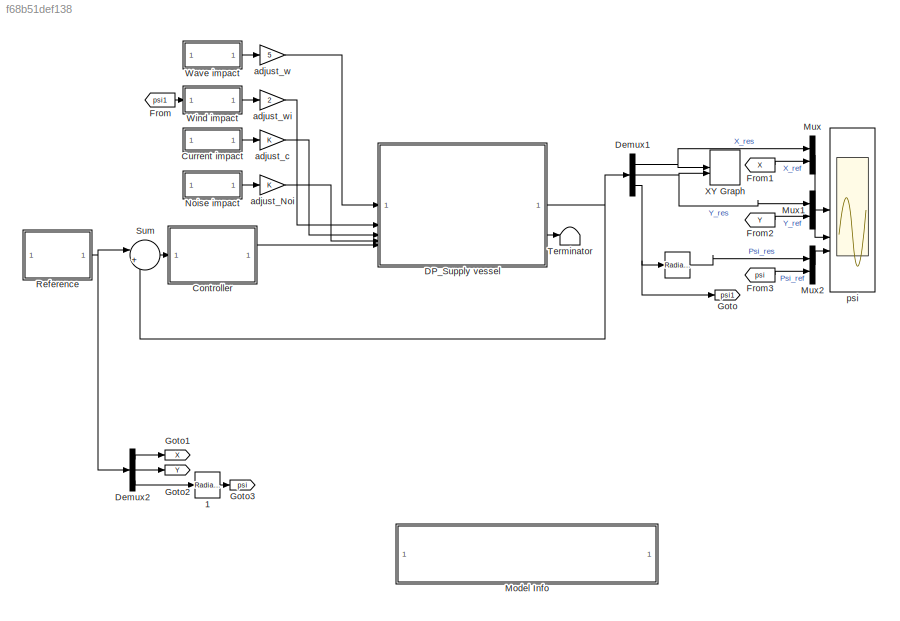
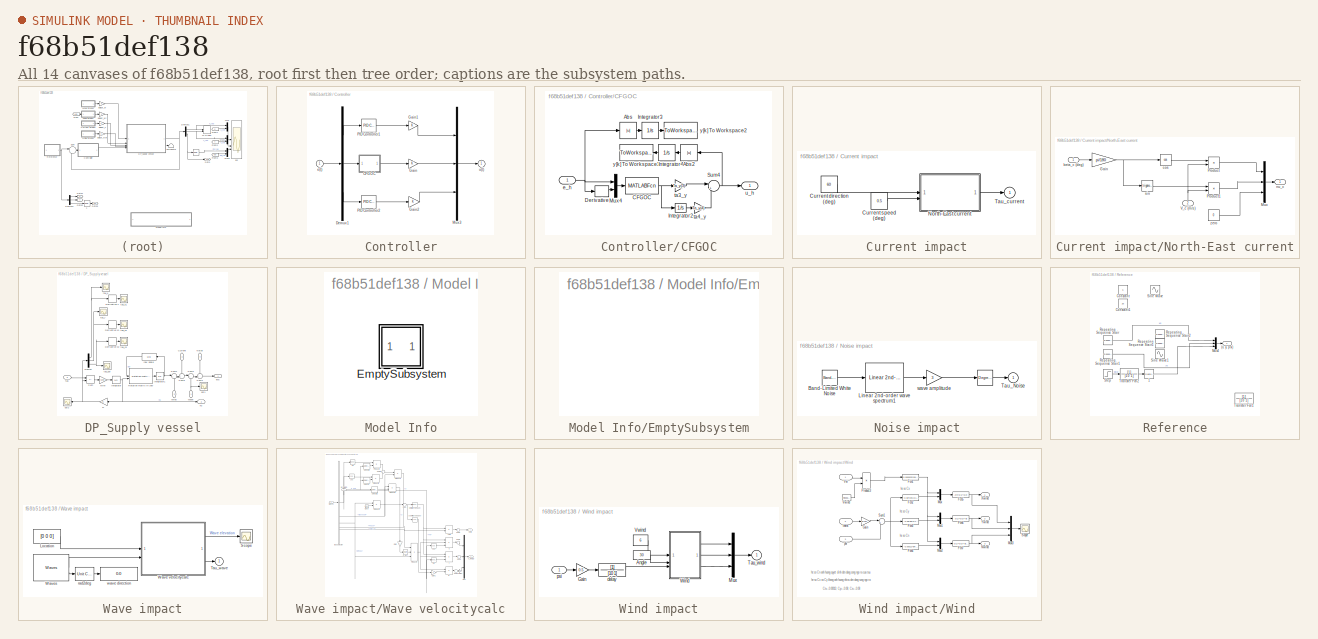
[diagram: thumbnail index - all 14 canvases of the model, root first then tree order]
MODEL slx_f68b51def138
KIND model
CONFIG AbsTol = auto
CONFIG EnableMultiTasking = on
CONFIG FixedStep = auto
CONFIG MaxStep = auto
CONFIG MinStep = auto
CONFIG RelTol = 1e-3
CONFIG SampleTimeConstraint = Unconstrained
CONFIG SolverName = ode45
CONFIG StartTime = 0.0
CONFIG StopTime = 1500
BLOCK [Reference]       REF=simulink_extras/Transformations/Radians
to Degrees
  SourceBlock = simulink_extras/Transformations/Radians\nto Degrees
  SourceType = RadiansToDegrees
BLOCK [Reference]     1  REF=simulink_extras/Transformations/Radians
to Degrees
  SourceBlock = simulink_extras/Transformations/Radians\nto Degrees
  SourceType = RadiansToDegrees
BLOCK [SubSystem] Controller
BLOCK [SubSystem] Controller/CFGOC
BLOCK [Abs] Controller/CFGOC/Abs
  SaturateOnIntegerOverflow = off
BLOCK [Abs] Controller/CFGOC/Abs2
  NameLocation = top
  SaturateOnIntegerOverflow = off
BLOCK [MATLABFcn] Controller/CFGOC/CFGOC
  MATLABFcn = TFC_xy
  OutputDimensions = 1
BLOCK [Derivative] Controller/CFGOC/Derivative
BLOCK [Integrator] Controller/CFGOC/Integrator2
BLOCK [Integrator] Controller/CFGOC/Integrator3
BLOCK [Integrator] Controller/CFGOC/Integrator4
  NameLocation = top
BLOCK [Mux] Controller/CFGOC/Mux4
  DisplayOption = bar
  Inputs = 2
BLOCK [Sum] Controller/CFGOC/Sum4
  InputSameDT = on
  Inputs = |++
  OutDataTypeStr = Inherit: Same as first input
  SaturateOnIntegerOverflow = on
BLOCK [Inport] Controller/CFGOC/e_h
BLOCK [Gain] Controller/CFGOC/ta3_y
  Gain = Ta_y(3)
BLOCK [Gain] Controller/CFGOC/ta4_y
  Gain = Ta_y(4)
  NameLocation = top
BLOCK [Outport] Controller/CFGOC/u_h
BLOCK [ToWorkspace] Controller/CFGOC/y[k] To Workspace2
  MaxDataPoints = inf
  SampleTime = -1
  SaveFormat = Timeseries
  VariableName = Sysy_Out1
BLOCK [ToWorkspace] Controller/CFGOC/y[k] To Workspace3
  MaxDataPoints = inf
  NameLocation = top
  SampleTime = -1
  SaveFormat = Timeseries
  VariableName = Sysy_Out2
BLOCK [Demux] Controller/Demux1
  Outputs = 3
BLOCK [Gain] Controller/Gain
BLOCK [Gain] Controller/Gain1
BLOCK [Gain] Controller/Gain2
BLOCK [Mux] Controller/Mux3
  DisplayOption = bar
  Inputs = 3
BLOCK [Reference] Controller/PID Controller1  REF=slpidlib/PID Controller
  SourceBlock = slpidlib/PID Controller
  SourceType = PID 1dof
BLOCK [Reference] Controller/PID Controller2  REF=slpidlib/PID Controller
  SourceBlock = slpidlib/PID Controller
  SourceType = PID 1dof
BLOCK [Inport] Controller/e(t)
BLOCK [Outport] Controller/u(t)
BLOCK [SubSystem] Current impact
BLOCK [Constant] Current impact/Current direction (deg)
  Value = 60
BLOCK [Constant] Current impact/Current speed (deg)
  Value = 0.5
BLOCK [SubSystem] Current impact/North-East current
  AncestorBlock = marine_gnc/Environment/Current/North-East current
BLOCK [Gain] Current impact/North-East current/Gain
  Gain = pi/180
BLOCK [Mux] Current impact/North-East current/Mux
  DisplayOption = bar
  Inputs = 3
BLOCK [Product] Current impact/North-East current/Product
  RndMeth = Zero
BLOCK [Product] Current impact/North-East current/Product1
  RndMeth = Zero
BLOCK [Inport] Current impact/North-East current/V_c (m//s)
  NameLocation = left
  Port = 2
BLOCK [Inport] Current impact/North-East current/beta_c (deg)
BLOCK [Trigonometry] Current impact/North-East current/cos
  Operator = cos
BLOCK [Outport] Current impact/North-East current/nu_c
BLOCK [Trigonometry] Current impact/North-East current/sin
BLOCK [Constant] Current impact/North-East current/zero
  Value = 0
BLOCK [Outport] Current impact/Tau_current
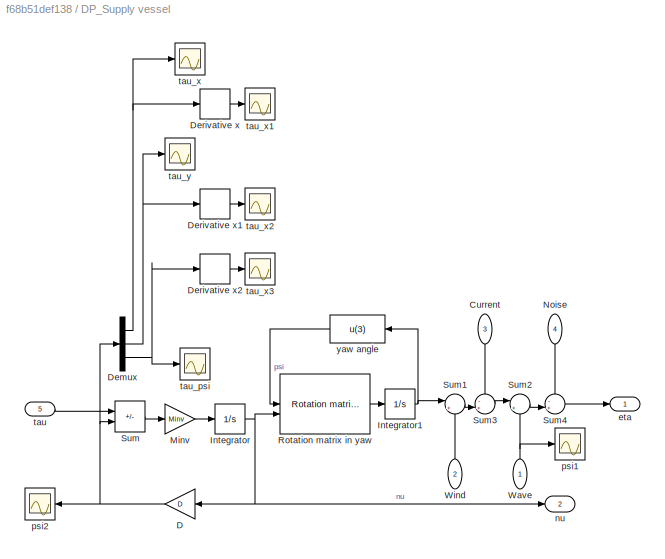
BLOCK [SubSystem] DP_Supply vessel
  AncestorBlock = marine_gnc/Examples/Vessels/Supply vessel
BLOCK [Inport] DP_Supply vessel/Current
  NameLocation = left
  Port = 3
BLOCK [Gain] DP_Supply vessel/D
  Gain = D
  Multiplication = Matrix(K*u)
  OutDataTypeStr = Inherit: Same as input
  ParamDataTypeStr = Inherit: Same as input
  SaturateOnIntegerOverflow = on
BLOCK [Demux] DP_Supply vessel/Demux
  Outputs = 3
BLOCK [Derivative] DP_Supply vessel/Derivative x
BLOCK [Derivative] DP_Supply vessel/Derivative x1
BLOCK [Derivative] DP_Supply vessel/Derivative x2
BLOCK [Integrator] DP_Supply vessel/Integrator
BLOCK [Integrator] DP_Supply vessel/Integrator1
BLOCK [Gain] DP_Supply vessel/Minv
  Gain = Minv
  Multiplication = Matrix(K*u)
  OutDataTypeStr = Inherit: Same as input
  ParamDataTypeStr = Inherit: Same as input
  SaturateOnIntegerOverflow = on
BLOCK [Inport] DP_Supply vessel/Noise
  NameLocation = left
  Port = 4
BLOCK [Reference] DP_Supply vessel/Rotation matrix in yaw   REF=marine_gnc/Models/ Kinematics/Rotation matrix  (lib defined in mdl_10d96c221ba8, mdl_45f1105420c6)
in yaw 
  SourceBlock = marine_gnc/Models/ Kinematics/Rotation matrix\nin yaw
BLOCK [Sum] DP_Supply vessel/Sum
  IconShape = rectangular
  InputSameDT = on
  Inputs = +-
  OutDataTypeStr = Inherit: Same as first input
  SaturateOnIntegerOverflow = on
BLOCK [Sum] DP_Supply vessel/Sum1
  Inputs = |+-
BLOCK [Sum] DP_Supply vessel/Sum2
  Inputs = |+-
BLOCK [Sum] DP_Supply vessel/Sum3
  Inputs = -+|
BLOCK [Sum] DP_Supply vessel/Sum4
  Inputs = -+|
BLOCK [Inport] DP_Supply vessel/Wave
  NameLocation = right
BLOCK [Inport] DP_Supply vessel/Wind
  NameLocation = right
  Port = 2
BLOCK [Outport] DP_Supply vessel/eta
  InitialOutput = 0
BLOCK [Outport] DP_Supply vessel/nu
  InitialOutput = 0
  Port = 2
BLOCK [Scope] DP_Supply vessel/psi1
  Floating = off
  NumInputPorts = 1
  ScopeSpecificationString = Simulink.scopes.TimeScopeBlockCfg('CurrentConfiguration', extmgr.ConfigurationSet(extmgr.Configuration('Core','General UI',true),extmgr.Configuration('Core','Source UI',true),extmgr.Configuration('Sources','WiredSimulink',true,'DataLoggingSaveFormat','StructureWithTime','DataLoggingLimitDataPoints',true,'DataLoggingDecimation','1','DataLoggingDecimateData',true,'DataLoggingVariableName','ScopeData...<+1797ch>
BLOCK [Scope] DP_Supply vessel/psi2
  Floating = off
  NameLocation = top
  NumInputPorts = 1
  ScopeSpecificationString = Simulink.scopes.TimeScopeBlockCfg('CurrentConfiguration', extmgr.ConfigurationSet(extmgr.Configuration('Core','General UI',true),extmgr.Configuration('Core','Source UI',true),extmgr.Configuration('Sources','WiredSimulink',true,'DataLoggingVariableName','ScopeData1'),extmgr.Configuration('Visuals','Time Domain',true,'SerializedDisplays',{struct('MinYLimReal','-4797055.23733','MaxYLimReal','582214.9...<+1515ch>
BLOCK [Inport] DP_Supply vessel/tau
  Port = 5
BLOCK [Scope] DP_Supply vessel/tau_psi
  Floating = off
  NumInputPorts = 1
  ScopeSpecificationString = Simulink.scopes.TimeScopeBlockCfg('CurrentConfiguration', extmgr.ConfigurationSet(extmgr.Configuration('Core','General UI',true),extmgr.Configuration('Core','Source UI',true),extmgr.Configuration('Sources','WiredSimulink',true,'DataLoggingVariableName','ScopeData3'),extmgr.Configuration('Visuals','Time Domain',true,'SerializedDisplays',{struct('MinYLimReal','-34403778.51494','MaxYLimReal','1922735...<+1542ch>
BLOCK [Scope] DP_Supply vessel/tau_x
  Floating = off
  NumInputPorts = 1
  ScopeSpecificationString = Simulink.scopes.TimeScopeBlockCfg('CurrentConfiguration', extmgr.ConfigurationSet(extmgr.Configuration('Core','General UI',true),extmgr.Configuration('Core','Source UI',true),extmgr.Configuration('Sources','WiredSimulink',true,'DataLoggingVariableName','ScopeData1'),extmgr.Configuration('Visuals','Time Domain',true,'SerializedDisplays',{struct('MinYLimReal','-14.2724','MaxYLimReal','14.27236','YLa...<+1490ch>
BLOCK [Scope] DP_Supply vessel/tau_x1
  Floating = off
  NumInputPorts = 1
  ScopeSpecificationString = Simulink.scopes.TimeScopeBlockCfg('CurrentConfiguration', extmgr.ConfigurationSet(extmgr.Configuration('Core','General UI',true),extmgr.Configuration('Core','Source UI',true),extmgr.Configuration('Sources','WiredSimulink',true,'DataLoggingVariableName','ScopeData4'),extmgr.Configuration('Visuals','Time Domain',true,'SerializedDisplays',{struct('MinYLimReal','-260387672.81715','MaxYLimReal','204100...<+1556ch>
BLOCK [Scope] DP_Supply vessel/tau_x2
  Floating = off
  NumInputPorts = 1
  ScopeSpecificationString = Simulink.scopes.TimeScopeBlockCfg('CurrentConfiguration', extmgr.ConfigurationSet(extmgr.Configuration('Core','General UI',true),extmgr.Configuration('Core','Source UI',true),extmgr.Configuration('Sources','WiredSimulink',true,'DataLoggingVariableName','ScopeData5'),extmgr.Configuration('Visuals','Time Domain',true,'SerializedDisplays',{struct('MinYLimReal','-14894107440.48988','MaxYLimReal','9625...<+1571ch>
BLOCK [Scope] DP_Supply vessel/tau_x3
  Floating = off
  NumInputPorts = 1
  ScopeSpecificationString = Simulink.scopes.TimeScopeBlockCfg('CurrentConfiguration', extmgr.ConfigurationSet(extmgr.Configuration('Core','General UI',true),extmgr.Configuration('Core','Source UI',true),extmgr.Configuration('Sources','WiredSimulink',true,'DataLoggingVariableName','ScopeData6'),extmgr.Configuration('Visuals','Time Domain',true,'SerializedDisplays',{struct('MinYLimReal','-3343222604.23135','MaxYLimReal','44227...<+1555ch>
BLOCK [Scope] DP_Supply vessel/tau_y
  Floating = off
  NumInputPorts = 1
  ScopeSpecificationString = Simulink.scopes.TimeScopeBlockCfg('CurrentConfiguration', extmgr.ConfigurationSet(extmgr.Configuration('Core','General UI',true),extmgr.Configuration('Core','Source UI',true),extmgr.Configuration('Sources','WiredSimulink',true,'DataLoggingVariableName','ScopeData2'),extmgr.Configuration('Visuals','Time Domain',true,'SerializedDisplays',{struct('MinYLimReal','-1774.54396','MaxYLimReal','4718.019','...<+1503ch>
BLOCK [Fcn] DP_Supply vessel/yaw angle
  Expr = u(3)
BLOCK [Demux] Demux1
  DisplayOption = none
  Outputs = 3
BLOCK [Demux] Demux2
  DisplayOption = none
  Outputs = 3
BLOCK [From] From
  GotoTag = psi1
BLOCK [From] From1
  GotoTag = X
BLOCK [From] From2
  GotoTag = Y
BLOCK [From] From3
  GotoTag = psi
BLOCK [Goto] Goto
  GotoTag = psi1
BLOCK [Goto] Goto1
  GotoTag = X
BLOCK [Goto] Goto2
  GotoTag = Y
BLOCK [Goto] Goto3
  GotoTag = psi
BLOCK [SubSystem] Model Info
  CopyFcn = slcm CopyBlock;
  DeleteFcn = slcm Cancel;
  InitFcn = slcm('UpdateAllCMBlocksInThisModelInit')
  LoadFcn = slcm LoadBlock;
  NameChangeFcn = slcm Rename;
  OpenFcn = slcm
  PostSaveFcn = slcm('UpdateAllCMBlocksInThisModel')
BLOCK [SubSystem] Model Info/EmptySubsystem
BLOCK [Mux] Mux
  DisplayOption = bar
  Inputs = 2
BLOCK [Mux] Mux1
  DisplayOption = bar
  Inputs = 2
BLOCK [Mux] Mux2
  DisplayOption = bar
  Inputs = 2
BLOCK [SubSystem] Noise impact
BLOCK [Reference] Noise impact/     REF=simulink_extras/Transformations/Degrees to
Radians
  SourceBlock = simulink_extras/Transformations/Degrees to\nRadians
  SourceType = DegreesToRadians
BLOCK [Reference] Noise impact/Band-Limited White Noise  REF=simulink/Sources/Band-Limited
White Noise
  SourceBlock = simulink/Sources/Band-Limited\nWhite Noise
  SourceType = Band-Limited White Noise.
BLOCK [Reference] Noise impact/Linear 2nd-order wave spectrum1  REF=marine_gnc/Environment/Waves/Linear 2nd-order   (lib defined in mdl_10d96c221ba8, mdl_45f1105420c6)
wave spectrum
  SourceBlock = marine_gnc/Environment/Waves/Linear 2nd-order \nwave spectrum
BLOCK [Outport] Noise impact/Tau_Noise
BLOCK [Gain] Noise impact/wave amplitude
  Gain = 3
  NameLocation = top
  OutDataTypeStr = Inherit: Same as input
  ParamDataTypeStr = Inherit: Same as input
  SaturateOnIntegerOverflow = on
BLOCK [SubSystem] Reference
BLOCK [Reference] Reference/     1  REF=simulink_extras/Transformations/Degrees to
Radians
  SourceBlock = simulink_extras/Transformations/Degrees to\nRadians
  SourceType = DegreesToRadians
BLOCK [Outport] Reference/(x, y, psi)
BLOCK [Constant] Reference/Constant
  Value = 5
BLOCK [Constant] Reference/Constant1
  Value = 25
BLOCK [Mux] Reference/Mux4
  DisplayOption = bar
  Inputs = 3
BLOCK [Reference] Reference/Repeating Sequence Stair  REF=simulink/Sources/Repeating
Sequence
Stair
  SourceBlock = simulink/Sources/Repeating\nSequence\nStair
  SourceType = Repeating Sequence Stair
BLOCK [Reference] Reference/Repeating Sequence Stair1  REF=simulink/Sources/Repeating
Sequence
Stair
  SourceBlock = simulink/Sources/Repeating\nSequence\nStair
  SourceType = Repeating Sequence Stair
BLOCK [Reference] Reference/Repeating Sequence Stair2  REF=simulink/Sources/Repeating
Sequence
Stair
  SourceBlock = simulink/Sources/Repeating\nSequence\nStair
  SourceType = Repeating Sequence Stair
BLOCK [Reference] Reference/Repeating Sequence Stair5  REF=simulink/Sources/Repeating
Sequence
Stair
  SourceBlock = simulink/Sources/Repeating\nSequence\nStair
  SourceType = Repeating Sequence Stair
BLOCK [Sin] Reference/Sine Wave
  Frequency = 4
  SampleTime = 0
BLOCK [Sin] Reference/Sine Wave1
  Amplitude = 20
  Frequency = 10
  SampleTime = 0
BLOCK [Step] Reference/Step
  After = 20
  SampleTime = 0
  Time = 0
BLOCK [TransferFcn] Reference/Transfer Fcn1
  Denominator = [10 1]
BLOCK [TransferFcn] Reference/Transfer Fcn2
  Denominator = [10 1]
  NameLocation = top
BLOCK [Sum] Sum
  Inputs = |+-
BLOCK [Terminator] Terminator
BLOCK [SubSystem] Wave impact
BLOCK [Constant] Wave impact/Location
  Value = [0 0 0]
BLOCK [Scope] Wave impact/Scope
  Floating = off
  NumInputPorts = 1
  ScopeSpecificationString = Simulink.scopes.TimeScopeBlockCfg('CurrentConfiguration', extmgr.ConfigurationSet(extmgr.Configuration('Core','General UI',true),extmgr.Configuration('Core','Source UI',true),extmgr.Configuration('Sources','WiredSimulink',true,'DataLoggingVariableName','ScopeData2','DataLoggingLimitDataPoints',true,'DataLoggingSaveFormat','Array','DataLoggingDecimation','1','DataLoggingDecimateData',true),extmgr.C...<+1525ch>
BLOCK [Outport] Wave impact/Tau_wave
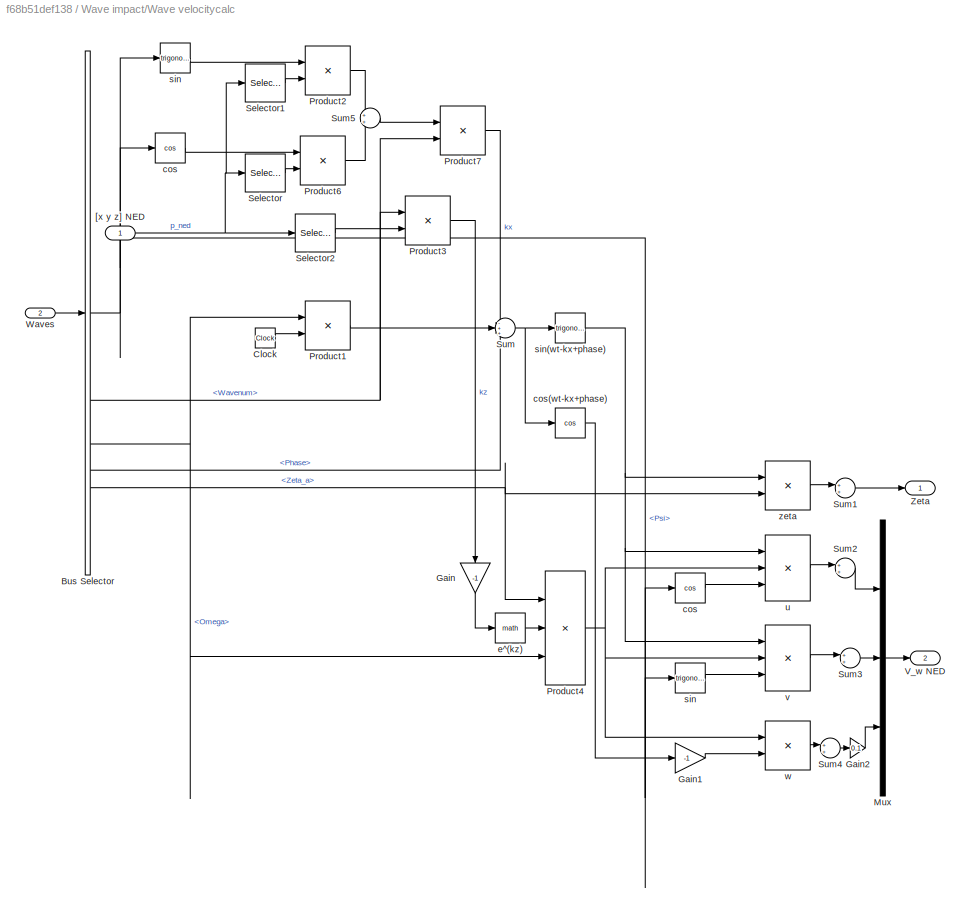
BLOCK [SubSystem] Wave impact/Wave velocitycalc
  AncestorBlock = marine_gnc/Environment/Waves/Wave velocitycalc
BLOCK [BusSelector] Wave impact/Wave velocitycalc/Bus Selector
  OutputSignals = Psi,Wavenum,Omega,Phase,Zeta_a
BLOCK [Clock] Wave impact/Wave velocitycalc/Clock
BLOCK [Gain] Wave impact/Wave velocitycalc/Gain
  Gain = -1
  NameLocation = left
  OutDataTypeStr = Inherit: Same as input
  ParamDataTypeStr = Inherit: Same as input
  SaturateOnIntegerOverflow = on
BLOCK [Gain] Wave impact/Wave velocitycalc/Gain1
  Gain = -1
  OutDataTypeStr = Inherit: Same as input
  ParamDataTypeStr = Inherit: Same as input
  SaturateOnIntegerOverflow = on
BLOCK [Gain] Wave impact/Wave velocitycalc/Gain2
  Gain = 0.1
  OutDataTypeStr = Inherit: Same as input
  ParamDataTypeStr = Inherit: Same as input
  SaturateOnIntegerOverflow = on
BLOCK [Mux] Wave impact/Wave velocitycalc/Mux
  DisplayOption = bar
  Inputs = 3
BLOCK [Product] Wave impact/Wave velocitycalc/Product1
  Inputs = **
  OutDataTypeStr = Inherit: Same as first input
  SaturateOnIntegerOverflow = on
BLOCK [Product] Wave impact/Wave velocitycalc/Product2
  Inputs = **
  OutDataTypeStr = Inherit: Same as first input
  SaturateOnIntegerOverflow = on
BLOCK [Product] Wave impact/Wave velocitycalc/Product3
  Inputs = **
  OutDataTypeStr = Inherit: Same as first input
  SaturateOnIntegerOverflow = on
BLOCK [Product] Wave impact/Wave velocitycalc/Product4
  Inputs = 3
  OutDataTypeStr = Inherit: Same as first input
  SaturateOnIntegerOverflow = on
BLOCK [Product] Wave impact/Wave velocitycalc/Product6
  Inputs = **
  OutDataTypeStr = Inherit: Same as first input
  SaturateOnIntegerOverflow = on
BLOCK [Product] Wave impact/Wave velocitycalc/Product7
  Inputs = **
  OutDataTypeStr = Inherit: Same as first input
  SaturateOnIntegerOverflow = on
BLOCK [Selector] Wave impact/Wave velocitycalc/Selector
  IndexOptions = Index vector (dialog)
  Indices = 1
  InputPortWidth = 3
  OutputSizes = 1
BLOCK [Selector] Wave impact/Wave velocitycalc/Selector1
  IndexOptions = Index vector (dialog)
  Indices = 2
  InputPortWidth = 3
  OutputSizes = 1
BLOCK [Selector] Wave impact/Wave velocitycalc/Selector2
  IndexOptions = Index vector (dialog)
  Indices = 3
  InputPortWidth = 3
  OutputSizes = 1
BLOCK [Sum] Wave impact/Wave velocitycalc/Sum
  Inputs = -++
  SaturateOnIntegerOverflow = on
BLOCK [Sum] Wave impact/Wave velocitycalc/Sum1
  Inputs = 1
  SaturateOnIntegerOverflow = on
BLOCK [Sum] Wave impact/Wave velocitycalc/Sum2
  Inputs = 1
  SaturateOnIntegerOverflow = on
BLOCK [Sum] Wave impact/Wave velocitycalc/Sum3
  Inputs = 1
  SaturateOnIntegerOverflow = on
BLOCK [Sum] Wave impact/Wave velocitycalc/Sum4
  Inputs = 1
  SaturateOnIntegerOverflow = on
BLOCK [Sum] Wave impact/Wave velocitycalc/Sum5
  SaturateOnIntegerOverflow = on
BLOCK [Outport] Wave impact/Wave velocitycalc/V_w NED
  Port = 2
BLOCK [Inport] Wave impact/Wave velocitycalc/Waves
  Port = 2
BLOCK [Outport] Wave impact/Wave velocitycalc/Zeta
BLOCK [Inport] Wave impact/Wave velocitycalc/[x y z] NED
BLOCK [Trigonometry] Wave impact/Wave velocitycalc/cos
  Operator = cos
BLOCK [Trigonometry] Wave impact/Wave velocitycalc/cos 
  Operator = cos
BLOCK [Trigonometry] Wave impact/Wave velocitycalc/cos(wt-kx+phase)
  Operator = cos
BLOCK [Math] Wave impact/Wave velocitycalc/e^(kz)
  SignedPower = on
BLOCK [Trigonometry] Wave impact/Wave velocitycalc/sin
BLOCK [Trigonometry] Wave impact/Wave velocitycalc/sin 
BLOCK [Trigonometry] Wave impact/Wave velocitycalc/sin(wt-kx+phase)
BLOCK [Product] Wave impact/Wave velocitycalc/u
  Inputs = ***
  OutDataTypeStr = Inherit: Same as first input
  SaturateOnIntegerOverflow = on
BLOCK [Product] Wave impact/Wave velocitycalc/v
  Inputs = ***
  OutDataTypeStr = Inherit: Same as first input
  SaturateOnIntegerOverflow = on
BLOCK [Product] Wave impact/Wave velocitycalc/w
  Inputs = **
  OutDataTypeStr = Inherit: Same as first input
  SaturateOnIntegerOverflow = on
BLOCK [Product] Wave impact/Wave velocitycalc/zeta
  Inputs = **
  OutDataTypeStr = Inherit: Same as first input
  SaturateOnIntegerOverflow = on
BLOCK [Reference] Wave impact/Waves  REF=marine_gnc/Environment/Waves/Waves  (lib defined in mdl_10d96c221ba8, mdl_45f1105420c6)
  SourceBlock = marine_gnc/Environment/Waves/Waves
  SourceType = Waves
BLOCK [Reference] Wave impact/rad2deg  REF=marine_gnc/Utilities/Math Operations/Unit Conversion  (lib defined in mdl_10d96c221ba8, mdl_45f1105420c6)
  SourceBlock = marine_gnc/Utilities/Math Operations/Unit Conversion
  SourceType = Unit Conversion
BLOCK [Display] Wave impact/wave direction
  Decimation = 1
BLOCK [SubSystem] Wind impact
BLOCK [Constant] Wind impact/Angle
  Value = 30
BLOCK [Gain] Wind impact/Gain
  Gain = 0.5
BLOCK [Mux] Wind impact/Mux
  DisplayOption = bar
  Inputs = 3
BLOCK [Outport] Wind impact/Tau_wind
BLOCK [Constant] Wind impact/Vwind
  NameLocation = top
  Value = 6
BLOCK [SubSystem] Wind impact/Wind
  NameLocation = top
BLOCK [Fcn] Wind impact/Wind/Fcn1
  Expr = 0.0000032*pa*u(1)*u(1)
BLOCK [Fcn] Wind impact/Wind/Fcn2
  Expr = -0.08*cos(u(1))
BLOCK [Fcn] Wind impact/Wind/Fcn3
  Expr = -0.08*sin(u(1))
BLOCK [Fcn] Wind impact/Wind/Fcn4
  Expr = -0.00011*sin(2*u(1))
BLOCK [Fcn] Wind impact/Wind/Fcn5
  Expr = Ats*u(1)*u(2)
BLOCK [Fcn] Wind impact/Wind/Fcn6
  Expr = u(1)*u(2)*Als
BLOCK [Fcn] Wind impact/Wind/Fcn7
  Expr = u(1)*u(2)*Als*Loa
BLOCK [Gain] Wind impact/Wind/Gain
  Gain = pi/180
BLOCK [Mux] Wind impact/Wind/Mux
  DisplayOption = bar
  Inputs = 2
BLOCK [Mux] Wind impact/Wind/Mux1
  DisplayOption = bar
  Inputs = 2
BLOCK [Mux] Wind impact/Wind/Mux2
  DisplayOption = bar
  Inputs = 2
BLOCK [Mux] Wind impact/Wind/Mux3
  DisplayOption = bar
  Inputs = 3
BLOCK [Outport] Wind impact/Wind/Nwind
  Port = 3
BLOCK [Product] Wind impact/Wind/Product3
  RndMeth = Zero
BLOCK [Scope] Wind impact/Wind/Scope
  Floating = off
  NumInputPorts = 1
  ScopeSpecificationString = C++SS(StrPVP('Location','[5, 48, 1285, 759]'),StrPVP('Open','off'),MxPVP('AxesTitles',54,'struct(''axes1'',''%<SignalLabel>'')'),StrPVP('ShowLegends','off'),StrPVP('YMin','-500000'),StrPVP('YMax','8e+006'),StrPVP('SaveName','ScopeData1'),StrPVP('DataFormat','StructureWithTime'),StrPVP('BlockParamSampleTime','0'),StrPVP('LimitDataPoints','on'),StrPVP('Decimation','1'),StrPVP('BlockParamSampleInput'...<+8ch>
BLOCK [Sum] Wind impact/Wind/Sum1
  Inputs = |+-
BLOCK [Inport] Wind impact/Wind/Vw
BLOCK [Reference] Wind impact/Wind/Vwind  REF=simulink/Sources/Repeating
Sequence
  NameLocation = top
  SourceBlock = simulink/Sources/Repeating\nSequence
  SourceType = Repeating table
BLOCK [Outport] Wind impact/Wind/Xwind
BLOCK [Outport] Wind impact/Wind/Ywind
  Port = 2
BLOCK [Inport] Wind impact/Wind/phi
  Port = 3
BLOCK [Inport] Wind impact/Wind/thera
  Port = 2
BLOCK [TransferFcn] Wind impact/delay
  Denominator = [10 1]
BLOCK [Inport] Wind impact/psi
BLOCK [Record] XY Graph
  CompatibilityTag = XY
  FileSettingsInternal = {"entries":[{"content":{"excelSettings":{"content":{},"type":"Streamout.ExcelSettings"}},"type":"Streamout.FileSettingStorage","uuid":""}],"packageUris":["http:\/\/schema.mathworks.com\/mf0\/streamout_blocks\/R2020a"],"version":"1.0"}
  Layout = [1 1]
  SignalsInternal = {"entries":[{"content":{"signals":[{"content":{"blockPath":[],"dimensions":[1],"domain":"","lineColor":"#a2142f","plots":[1],"port":1,"signalID":26,"signalName":"XY Graph:1"},"type":"RecordBlkView.Signal","uuid":""},{"content":{"blockPath":[],"dimensions":[1],"domain":"","lineColor":"#139fff","plots":[1],"port":2,"signalID":29,"signalName":"XY Graph:2"},"type":"RecordBlkView.Signal","uuid":""}]},"...<+142ch>
  VisualizationBindings = {"xyplotplugin":{"info":[{"series":[{"bindingParametersList":[{"parameter":"X-Axis","signalID":26,"signalName":"XY Graph:1"},{"parameter":"Y-Axis","signalID":29,"signalName":"XY Graph:2"}],"seriesID":58525}],"subplotID":1}]}}
  st = 0.1
BLOCK [Gain] adjust_Noi
BLOCK [Gain] adjust_c
BLOCK [Gain] adjust_w
  Gain = 5
BLOCK [Gain] adjust_wi
  Gain = 2
BLOCK [Scope] psi
  Floating = off
  NumInputPorts = 3
  ScopeSpecificationString = Simulink.scopes.TimeScopeBlockCfg('CurrentConfiguration', extmgr.ConfigurationSet(extmgr.Configuration('Core','General UI',true,'FigureColor',[1 1 1]),extmgr.Configuration('Core','Source UI',true),extmgr.Configuration('Sources','WiredSimulink',true,'DataLogging',true,'DataLoggingSaveFormat','StructureWithTime','DataLoggingDecimation','1','DataLoggingDecimateData',true,'DataLoggingVariableName','Sc...<+5255ch>
ANNOTATION Wind impact/Wind: Cn=-0.00013; Cy=-0.08; Cx=-0.08
ANNOTATION Wind impact/Wind: he so Cn
ANNOTATION Wind impact/Wind: he so Cn anh huong quyet dinh den dang song ngo ra cua tau
ANNOTATION Wind impact/Wind: he so Cx
ANNOTATION Wind impact/Wind: he so Cx va Cy khong anh huong nhieu den dang song ngo ra
ANNOTATION Wind impact/Wind: he so Cy
LINE     1:1 -> Goto3:1
LINE     :1 -> Mux2:1
LINE Controller/CFGOC/Abs2:1 -> Controller/CFGOC/Integrator4:1
LINE Controller/CFGOC/Abs:1 -> Controller/CFGOC/Integrator3:1
NET Controller/CFGOC/CFGOC:1 -> Controller/CFGOC/Integrator2:1, Controller/CFGOC/ta3_y:1
LINE Controller/CFGOC/Derivative:1 -> Controller/CFGOC/Mux4:2
LINE Controller/CFGOC/Integrator2:1 -> Controller/CFGOC/ta4_y:1
LINE Controller/CFGOC/Integrator3:1 -> Controller/CFGOC/y[k] To Workspace2:1
LINE Controller/CFGOC/Integrator4:1 -> Controller/CFGOC/y[k] To Workspace3:1
LINE Controller/CFGOC/Mux4:1 -> Controller/CFGOC/CFGOC:1
NET Controller/CFGOC/Sum4:1 -> Controller/CFGOC/Abs2:1, Controller/CFGOC/u_h:1
NET Controller/CFGOC/e_h:1 -> Controller/CFGOC/Abs:1, Controller/CFGOC/Derivative:1, Controller/CFGOC/Mux4:1
LINE Controller/CFGOC/ta3_y:1 -> Controller/CFGOC/Sum4:1
LINE Controller/CFGOC/ta4_y:1 -> Controller/CFGOC/Sum4:2
LINE Controller/CFGOC:1 -> Controller/Gain:1
LINE Controller/Demux1:1 -> Controller/PID Controller1:1
LINE Controller/Demux1:2 -> Controller/CFGOC:1
LINE Controller/Demux1:3 -> Controller/PID Controller2:1
LINE Controller/Gain1:1 -> Controller/Mux3:1
LINE Controller/Gain2:1 -> Controller/Mux3:3
LINE Controller/Gain:1 -> Controller/Mux3:2
LINE Controller/Mux3:1 -> Controller/u(t):1
LINE Controller/PID Controller1:1 -> Controller/Gain1:1
LINE Controller/PID Controller2:1 -> Controller/Gain2:1
LINE Controller/e(t):1 -> Controller/Demux1:1
LINE Controller:1 -> DP_Supply vessel:5
LINE Current impact/Current direction (deg):1 -> Current impact/North-East current:1
LINE Current impact/Current speed (deg):1 -> Current impact/North-East current:2
LINE Current impact/North-East current:1 -> Current impact/Tau_current:1
LINE Current impact:1 -> adjust_c:1
NET DP_Supply vessel:1 -> Demux1:1, Sum:2
LINE DP_Supply vessel:2 -> Terminator:1
NET Demux1:1 -> Mux:1, XY Graph:1
NET Demux1:2 -> Mux1:1, XY Graph:2
NET Demux1:3 ->     :1, Goto:1
LINE Demux2:1 -> Goto1:1
LINE Demux2:2 -> Goto2:1
LINE Demux2:3 ->     1:1
LINE From1:1 -> Mux:2
LINE From2:1 -> Mux1:2
LINE From3:1 -> Mux2:2
LINE From:1 -> Wind impact:1
LINE Mux1:1 -> psi:2
LINE Mux2:1 -> psi:3
LINE Mux:1 -> psi:1
LINE Noise impact/   :1 -> Noise impact/Tau_Noise:1
LINE Noise impact/Band-Limited White Noise:1 -> Noise impact/Linear 2nd-order wave spectrum1:1
LINE Noise impact/Linear 2nd-order wave spectrum1:1 -> Noise impact/wave amplitude:1
LINE Noise impact/wave amplitude:1 -> Noise impact/   :1
LINE Noise impact:1 -> adjust_Noi:1
LINE Reference/     1:1 -> Reference/Mux4:3
LINE Reference/Mux4:1 -> Reference/(x, y, psi):1
LINE Reference/Repeating Sequence Stair1:1 -> Reference/Mux4:2
LINE Reference/Repeating Sequence Stair:1 -> Reference/Mux4:1
LINE Reference/Step:1 -> Reference/Transfer Fcn2:1
LINE Reference/Transfer Fcn2:1 -> Reference/     1:1
NET Reference:1 -> Demux2:1, Sum:1
LINE Sum:1 -> Controller:1
LINE Wave impact/Location:1 -> Wave impact/Wave velocitycalc:1
LINE Wave impact/Wave velocitycalc:1 -> Wave impact/Scope:1
LINE Wave impact/Wave velocitycalc:2 -> Wave impact/Tau_wave:1
LINE Wave impact/Waves:1 -> Wave impact/Wave velocitycalc:2
LINE Wave impact/Waves:2 -> Wave impact/rad2deg:1
LINE Wave impact/rad2deg:1 -> Wave impact/wave direction:1
LINE Wave impact:1 -> adjust_w:1
LINE Wind impact/Angle:1 -> Wind impact/Wind:2
LINE Wind impact/Gain:1 -> Wind impact/delay:1
LINE Wind impact/Mux:1 -> Wind impact/Tau_wind:1
LINE Wind impact/Vwind:1 -> Wind impact/Wind:1
NET Wind impact/Wind/Fcn1:1 -> Wind impact/Wind/Mux1:1, Wind impact/Wind/Mux2:1, Wind impact/Wind/Mux:1
LINE Wind impact/Wind/Fcn2:1 -> Wind impact/Wind/Mux:2
LINE Wind impact/Wind/Fcn3:1 -> Wind impact/Wind/Mux1:2
LINE Wind impact/Wind/Fcn4:1 -> Wind impact/Wind/Mux2:2
NET Wind impact/Wind/Fcn5:1 -> Wind impact/Wind/Mux3:1, Wind impact/Wind/Xwind:1
NET Wind impact/Wind/Fcn6:1 -> Wind impact/Wind/Mux3:2, Wind impact/Wind/Ywind:1
NET Wind impact/Wind/Fcn7:1 -> Wind impact/Wind/Mux3:3, Wind impact/Wind/Nwind:1
LINE Wind impact/Wind/Gain:1 -> Wind impact/Wind/Sum1:1
LINE Wind impact/Wind/Mux1:1 -> Wind impact/Wind/Fcn6:1
LINE Wind impact/Wind/Mux2:1 -> Wind impact/Wind/Fcn7:1
LINE Wind impact/Wind/Mux3:1 -> Wind impact/Wind/Scope:1
LINE Wind impact/Wind/Mux:1 -> Wind impact/Wind/Fcn5:1
LINE Wind impact/Wind/Product3:1 -> Wind impact/Wind/Fcn1:1
NET Wind impact/Wind/Sum1:1 -> Wind impact/Wind/Fcn2:1, Wind impact/Wind/Fcn3:1, Wind impact/Wind/Fcn4:1
LINE Wind impact/Wind/Vw:1 -> Wind impact/Wind/Product3:1
LINE Wind impact/Wind/Vwind:1 -> Wind impact/Wind/Product3:2
LINE Wind impact/Wind/phi:1 -> Wind impact/Wind/Sum1:2
LINE Wind impact/Wind/thera:1 -> Wind impact/Wind/Gain:1
LINE Wind impact/Wind:1 -> Wind impact/Mux:1
LINE Wind impact/Wind:2 -> Wind impact/Mux:2
LINE Wind impact/Wind:3 -> Wind impact/Mux:3
LINE Wind impact/delay:1 -> Wind impact/Wind:3
LINE Wind impact/psi:1 -> Wind impact/Gain:1
LINE Wind impact:1 -> adjust_wi:1
LINE adjust_Noi:1 -> DP_Supply vessel:4
LINE adjust_c:1 -> DP_Supply vessel:3
LINE adjust_w:1 -> DP_Supply vessel:1
LINE adjust_wi:1 -> DP_Supply vessel:2
note: NET lines group one-source signal fan-out (src -> all destinations, sorted); 1:1 wires keep LINE
